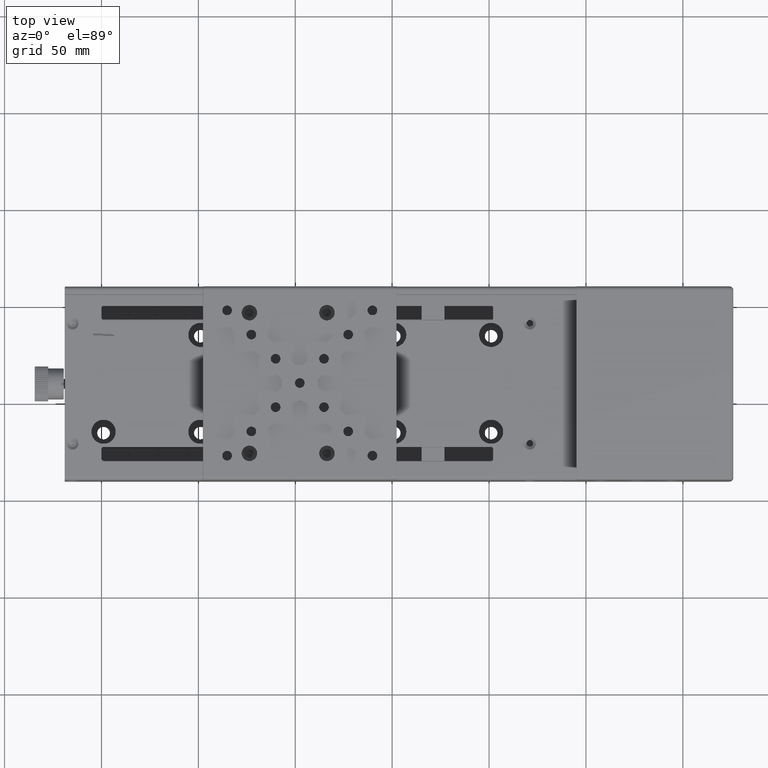
[diagram: clean part render]
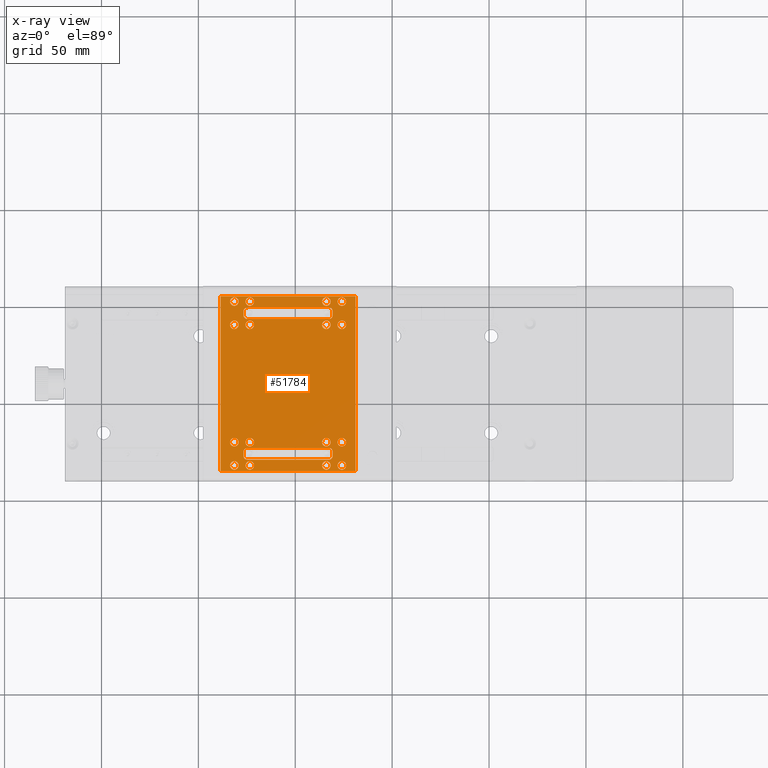
[diagram: x-ray — body ghosted, one internal face saturated and labeled with its STEP entity id]
A machine part, top view, then the same camera in x-ray: the body is ghosted and one INTERNAL B-rep face — a face not visible from any outside direction — is saturated and labeled: STEP entity #51784.
In plain terms, the highlighted planar face has unit normal (0, 0, 1).
Its self-contained STEP definition (entity closure, byte-faithful):
#247 = VERTEX_POINT ( 'NONE', #21428 ) ;
#332 = ORIENTED_EDGE ( 'NONE', *, *, #71512, .T. ) ;
#506 = ORIENTED_EDGE ( 'NONE', *, *, #46120, .T. ) ;
#659 = DIRECTION ( 'NONE',  ( -1.000000000000000000, 0.000000000000000000, 0.000000000000000000 ) ) ;
#706 = EDGE_CURVE ( 'NONE', #35404, #1262, #40378, .T. ) ;
#854 = CARTESIAN_POINT ( 'NONE',  ( -31.75341547894224803, -32.30575141257539684, 32.50000000000000000 ) ) ;
#1262 = VERTEX_POINT ( 'NONE', #56250 ) ;
#1293 = CARTESIAN_POINT ( 'NONE',  ( -76.70341547894220469, -23.30575141257540039, 32.50000000000000000 ) ) ;
#1304 = DIRECTION ( 'NONE',  ( -1.000000000000000000, 0.000000000000000000, 0.000000000000000000 ) ) ;
#1483 = ORIENTED_EDGE ( 'NONE', *, *, #13015, .T. ) ;
#1798 = VERTEX_POINT ( 'NONE', #41067 ) ;
#1828 = CARTESIAN_POINT ( 'NONE',  ( -32.70341547894224732, 49.29424858742459747, 32.50000000000000000 ) ) ;
#1870 = EDGE_CURVE ( 'NONE', #59480, #67586, #32856, .T. ) ;
#1907 = AXIS2_PLACEMENT_3D ( 'NONE', #30076, #69883, #2076 ) ;
#2076 = DIRECTION ( 'NONE',  ( -1.000000000000000000, 0.000000000000000000, 0.000000000000000000 ) ) ;
#2593 = AXIS2_PLACEMENT_3D ( 'NONE', #23923, #65883, #31599 ) ;
#2636 = DIRECTION ( 'NONE',  ( -1.000000000000000000, 0.000000000000000000, 0.000000000000000000 ) ) ;
#2653 = CARTESIAN_POINT ( 'NONE',  ( -33.95341547894224732, -20.30575141257540039, 32.50000000000000000 ) ) ;
#2947 = DIRECTION ( 'NONE',  ( -1.000000000000000000, 0.000000000000000000, 0.000000000000000000 ) ) ;
#2949 = DIRECTION ( 'NONE',  ( -1.000000000000000000, 0.000000000000000000, 0.000000000000000000 ) ) ;
#2978 = ORIENTED_EDGE ( 'NONE', *, *, #64624, .F. ) ;
#3164 = VERTEX_POINT ( 'NONE', #37204 ) ;
#3206 = FACE_BOUND ( 'NONE', #8957, .T. ) ;
#3412 = DIRECTION ( 'NONE',  ( 0.000000000000000000, 4.903491597976379727E-16, 1.000000000000000000 ) ) ;
#3427 = EDGE_CURVE ( 'NONE', #37369, #1798, #9065, .T. ) ;
#3522 = VERTEX_POINT ( 'NONE', #61952 ) ;
#3747 = ORIENTED_EDGE ( 'NONE', *, *, #48272, .F. ) ;
#3863 = CARTESIAN_POINT ( 'NONE',  ( -73.45341547894228995, 40.29424858742459747, 32.50000000000000000 ) ) ;
#3877 = CARTESIAN_POINT ( 'NONE',  ( -30.70341547894224732, 45.29424858742460458, 32.50000000000000000 ) ) ;
#3913 = FACE_BOUND ( 'NONE', #61116, .T. ) ;
#3980 = DIRECTION ( 'NONE',  ( -5.551115123125779621E-17, 1.000000000000000000, -4.903491597976379727E-16 ) ) ;
#4258 = CIRCLE ( 'NONE', #12544, 2.000000000000001776 ) ;
#4293 = AXIS2_PLACEMENT_3D ( 'NONE', #67022, #26201, #659 ) ;
#4591 = CARTESIAN_POINT ( 'NONE',  ( -81.45341547894230416, 52.29424858742460458, 32.50000000000000000 ) ) ;
#4592 = DIRECTION ( 'NONE',  ( 0.000000000000000000, -4.903491597976379727E-16, -1.000000000000000000 ) ) ;
#4803 = VERTEX_POINT ( 'NONE', #40592 ) ;
#4830 = EDGE_CURVE ( 'NONE', #60572, #66361, #33578, .T. ) ;
#4939 = CIRCLE ( 'NONE', #72053, 2.200000000000000622 ) ;
#5091 = CARTESIAN_POINT ( 'NONE',  ( -88.50341547894228711, -35.30575141257540395, 32.50000000000000000 ) ) ;
#5339 = AXIS2_PLACEMENT_3D ( 'NONE', #70809, #49048, #2636 ) ;
#5947 = CARTESIAN_POINT ( 'NONE',  ( -81.45341547894230416, 40.29424858742459747, 32.50000000000000000 ) ) ;
#6075 = DIRECTION ( 'NONE',  ( 0.000000000000000000, 4.903491597976379727E-16, 1.000000000000000000 ) ) ;
#6340 = CARTESIAN_POINT ( 'NONE',  ( -81.45341547894230416, -32.30575141257539684, 32.50000000000000000 ) ) ;
#6504 = DIRECTION ( 'NONE',  ( 5.551115123125779621E-17, -1.000000000000000000, 4.903491597976379727E-16 ) ) ;
#6800 = CARTESIAN_POINT ( 'NONE',  ( -74.70341547894230416, 49.29424858742459747, 32.50000000000000000 ) ) ;
#7166 = ORIENTED_EDGE ( 'NONE', *, *, #42067, .F. ) ;
#7223 = EDGE_LOOP ( 'NONE', ( #49945, #60224 ) ) ;
#7239 = CARTESIAN_POINT ( 'NONE',  ( -75.65341547894229279, 52.29424858742460458, 32.50000000000000000 ) ) ;
#7772 = AXIS2_PLACEMENT_3D ( 'NONE', #45533, #23767, #40010 ) ;
#7927 = VERTEX_POINT ( 'NONE', #8224 ) ;
#8067 = DIRECTION ( 'NONE',  ( 0.000000000000000000, 4.903491597976379727E-16, 1.000000000000000000 ) ) ;
#8115 = ORIENTED_EDGE ( 'NONE', *, *, #48105, .F. ) ;
#8224 = CARTESIAN_POINT ( 'NONE',  ( -76.70341547894220469, -27.30575141257540039, 32.50000000000000000 ) ) ;
#8714 = CARTESIAN_POINT ( 'NONE',  ( -53.70341547894229706, 9.994248587424591435, 32.50000000000000000 ) ) ;
#8930 = CARTESIAN_POINT ( 'NONE',  ( -33.95341547894224732, 40.29424858742459747, 32.50000000000000000 ) ) ;
#8957 = EDGE_LOOP ( 'NONE', ( #72456, #8115 ) ) ;
#9065 = CIRCLE ( 'NONE', #50271, 2.200000000000000622 ) ;
#9192 = EDGE_LOOP ( 'NONE', ( #68864, #32514, #66306, #43540, #2978, #69899, #1483, #50257 ) ) ;
#9437 = EDGE_LOOP ( 'NONE', ( #25250, #25184 ) ) ;
#9548 = DIRECTION ( 'NONE',  ( 0.000000000000000000, 4.903491597976379727E-16, 1.000000000000000000 ) ) ;
#9973 = VERTEX_POINT ( 'NONE', #30569 ) ;
#10006 = CARTESIAN_POINT ( 'NONE',  ( -76.70341547894230416, 45.29424858742460458, 32.50000000000000000 ) ) ;
#10015 = CARTESIAN_POINT ( 'NONE',  ( -88.70341547894228995, 55.09424858742460174, 32.50000000000000000 ) ) ;
#10093 = DIRECTION ( 'NONE',  ( -1.000000000000000000, 0.000000000000000000, 0.000000000000000000 ) ) ;
#10298 = ORIENTED_EDGE ( 'NONE', *, *, #37364, .F. ) ;
#10639 = ORIENTED_EDGE ( 'NONE', *, *, #57852, .F. ) ;
#10747 = EDGE_CURVE ( 'NONE', #4803, #16373, #67083, .T. ) ;
#11046 = VERTEX_POINT ( 'NONE', #70162 ) ;
#11538 = CARTESIAN_POINT ( 'NONE',  ( -73.45341547894228995, -32.30575141257539684, 32.50000000000000000 ) ) ;
#11585 = CARTESIAN_POINT ( 'NONE',  ( -25.95341547894224732, -32.30575141257544658, 32.50000000000000000 ) ) ;
#11788 = CIRCLE ( 'NONE', #69467, 2.199999999999993516 ) ;
#12275 = DIRECTION ( 'NONE',  ( 1.000000000000000000, -1.665334536937734811E-16, -5.548120488592929190E-17 ) ) ;
#12297 = VERTEX_POINT ( 'NONE', #48858 ) ;
#12415 = CARTESIAN_POINT ( 'NONE',  ( -18.90341547894225016, 55.29424858742459747, 32.50000000000000000 ) ) ;
#12472 = CARTESIAN_POINT ( 'NONE',  ( -18.70341547894224732, -23.30575141257545368, 32.50000000000000000 ) ) ;
#12544 = AXIS2_PLACEMENT_3D ( 'NONE', #46862, #25089, #47211 ) ;
#12763 = VERTEX_POINT ( 'NONE', #32827 ) ;
#12912 = EDGE_LOOP ( 'NONE', ( #17031, #22436 ) ) ;
#13015 = EDGE_CURVE ( 'NONE', #52026, #3522, #15056, .T. ) ;
#13165 = EDGE_CURVE ( 'NONE', #24958, #21509, #47287, .T. ) ;
#13331 = VECTOR ( 'NONE', #30810, 1000.000000000000000 ) ;
#13436 = DIRECTION ( 'NONE',  ( 0.000000000000000000, 4.903491597976379727E-16, 1.000000000000000000 ) ) ;
#13585 = EDGE_CURVE ( 'NONE', #247, #39088, #33602, .T. ) ;
#13732 = DIRECTION ( 'NONE',  ( 0.000000000000000000, 4.903491597976379727E-16, 1.000000000000000000 ) ) ;
#13789 = DIRECTION ( 'NONE',  ( -1.000000000000000000, 0.000000000000000000, 0.000000000000000000 ) ) ;
#14031 = VERTEX_POINT ( 'NONE', #16346 ) ;
#14260 = FACE_BOUND ( 'NONE', #50340, .T. ) ;
#14274 = EDGE_CURVE ( 'NONE', #59778, #30059, #59572, .T. ) ;
#14374 = DIRECTION ( 'NONE',  ( 0.000000000000000000, 4.903491597976379727E-16, 1.000000000000000000 ) ) ;
#14913 = VERTEX_POINT ( 'NONE', #54840 ) ;
#14990 = CIRCLE ( 'NONE', #45638, 2.200000000000000622 ) ;
#15004 = VECTOR ( 'NONE', #49466, 1000.000000000000000 ) ;
#15056 = LINE ( 'NONE', #15418, #22599 ) ;
#15265 = ORIENTED_EDGE ( 'NONE', *, *, #66947, .T. ) ;
#15351 = FACE_BOUND ( 'NONE', #33166, .T. ) ;
#15418 = CARTESIAN_POINT ( 'NONE',  ( -76.70341547894230416, 49.29424858742459747, 32.50000000000000000 ) ) ;
#15496 = AXIS2_PLACEMENT_3D ( 'NONE', #45630, #39374, #17243 ) ;
#15805 = EDGE_CURVE ( 'NONE', #1262, #35404, #37384, .T. ) ;
#15868 = ORIENTED_EDGE ( 'NONE', *, *, #22490, .T. ) ;
#15887 = AXIS2_PLACEMENT_3D ( 'NONE', #47189, #63427, #52340 ) ;
#16346 = CARTESIAN_POINT ( 'NONE',  ( -30.70341547894224732, -25.30575141257545013, 32.50000000000000000 ) ) ;
#16373 = VERTEX_POINT ( 'NONE', #41304 ) ;
#16526 = ORIENTED_EDGE ( 'NONE', *, *, #65838, .F. ) ;
#16641 = CARTESIAN_POINT ( 'NONE',  ( -30.70341547894224732, -29.30575141257545013, 32.50000000000000000 ) ) ;
#16794 = CARTESIAN_POINT ( 'NONE',  ( -33.95341547894224732, -32.30575141257539684, 32.50000000000000000 ) ) ;
#17011 = ORIENTED_EDGE ( 'NONE', *, *, #19293, .F. ) ;
#17020 = EDGE_CURVE ( 'NONE', #39418, #65947, #40383, .T. ) ;
#17031 = ORIENTED_EDGE ( 'NONE', *, *, #17246, .F. ) ;
#17173 = EDGE_LOOP ( 'NONE', ( #39330, #52611, #15265, #63244 ) ) ;
#17243 = DIRECTION ( 'NONE',  ( -1.000000000000000000, 0.000000000000000000, 0.000000000000000000 ) ) ;
#17246 = EDGE_CURVE ( 'NONE', #33391, #57960, #26192, .T. ) ;
#17393 = VERTEX_POINT ( 'NONE', #21062 ) ;
#17594 = CARTESIAN_POINT ( 'NONE',  ( -30.70341547894224732, 49.29424858742459747, 32.50000000000000000 ) ) ;
#18227 = LINE ( 'NONE', #1293, #39578 ) ;
#18277 = ORIENTED_EDGE ( 'NONE', *, *, #35164, .F. ) ;
#18627 = ORIENTED_EDGE ( 'NONE', *, *, #70540, .F. ) ;
#18681 = CARTESIAN_POINT ( 'NONE',  ( -83.65341547894229279, 40.29424858742459747, 32.50000000000000000 ) ) ;
#18747 = CIRCLE ( 'NONE', #56395, 2.199999999999993516 ) ;
#18782 = CARTESIAN_POINT ( 'NONE',  ( -71.25341547894230132, 40.29424858742459747, 32.50000000000000000 ) ) ;
#18828 = VERTEX_POINT ( 'NONE', #70327 ) ;
#18893 = CARTESIAN_POINT ( 'NONE',  ( -18.70341547894224732, -35.10575141257545084, 32.50000000000000000 ) ) ;
#19283 = CARTESIAN_POINT ( 'NONE',  ( -36.15341547894225016, -20.30575141257540039, 32.50000000000000000 ) ) ;
#19293 = EDGE_CURVE ( 'NONE', #34232, #54882, #26936, .T. ) ;
#19406 = CARTESIAN_POINT ( 'NONE',  ( -74.70341547894220469, -27.30575141257540039, 32.50000000000000000 ) ) ;
#19441 = AXIS2_PLACEMENT_3D ( 'NONE', #16794, #6075, #62135 ) ;
#19784 = FACE_BOUND ( 'NONE', #9192, .T. ) ;
#19956 = AXIS2_PLACEMENT_3D ( 'NONE', #4591, #43677, #44781 ) ;
#20130 = FACE_BOUND ( 'NONE', #7223, .T. ) ;
#20415 = CIRCLE ( 'NONE', #29867, 2.199999999999993516 ) ;
#20448 = DIRECTION ( 'NONE',  ( 0.000000000000000000, 4.903491597976379727E-16, 1.000000000000000000 ) ) ;
#20687 = EDGE_LOOP ( 'NONE', ( #32247, #52501 ) ) ;
#20779 = CARTESIAN_POINT ( 'NONE',  ( -25.95341547894224732, 52.29424858742460458, 32.50000000000000000 ) ) ;
#20860 = FACE_BOUND ( 'NONE', #71089, .T. ) ;
#21062 = CARTESIAN_POINT ( 'NONE',  ( -83.65341547894229279, -20.30575141257540039, 32.50000000000000000 ) ) ;
#21347 = CARTESIAN_POINT ( 'NONE',  ( -73.45341547894228995, 52.29424858742460458, 32.50000000000000000 ) ) ;
#21379 = CARTESIAN_POINT ( 'NONE',  ( -36.15341547894225016, 40.29424858742459747, 32.50000000000000000 ) ) ;
#21428 = CARTESIAN_POINT ( 'NONE',  ( -36.15341547894225016, -32.30575141257539684, 32.50000000000000000 ) ) ;
#21509 = VERTEX_POINT ( 'NONE', #32460 ) ;
#21514 = CARTESIAN_POINT ( 'NONE',  ( -81.45341547894230416, -20.30575141257540039, 32.50000000000000000 ) ) ;
#21539 = VECTOR ( 'NONE', #57566, 1000.000000000000000 ) ;
#21601 = CARTESIAN_POINT ( 'NONE',  ( -73.45341547894228995, 40.29424858742459747, 32.50000000000000000 ) ) ;
#21953 = CARTESIAN_POINT ( 'NONE',  ( -25.95341547894224732, 40.29424858742459747, 32.50000000000000000 ) ) ;
#22029 = LINE ( 'NONE', #17594, #64062 ) ;
#22436 = ORIENTED_EDGE ( 'NONE', *, *, #41689, .F. ) ;
#22490 = EDGE_CURVE ( 'NONE', #53563, #9973, #29915, .T. ) ;
#22599 = VECTOR ( 'NONE', #3980, 1000.000000000000000 ) ;
#22951 = DIRECTION ( 'NONE',  ( -1.000000000000000000, 0.000000000000000000, 0.000000000000000000 ) ) ;
#22982 = VERTEX_POINT ( 'NONE', #29270 ) ;
#23149 = VECTOR ( 'NONE', #31182, 1000.000000000000000 ) ;
#23377 = AXIS2_PLACEMENT_3D ( 'NONE', #3863, #20448, #54001 ) ;
#23767 = DIRECTION ( 'NONE',  ( 0.000000000000000000, 4.903491597976379727E-16, 1.000000000000000000 ) ) ;
#23923 = CARTESIAN_POINT ( 'NONE',  ( -81.45341547894230416, -32.30575141257539684, 32.50000000000000000 ) ) ;
#24131 = VECTOR ( 'NONE', #57423, 1000.000000000000000 ) ;
#24148 = EDGE_CURVE ( 'NONE', #67586, #59480, #72110, .T. ) ;
#24215 = LINE ( 'NONE', #12415, #13331 ) ;
#24588 = DIRECTION ( 'NONE',  ( 0.000000000000000000, -4.903491597976379727E-16, -1.000000000000000000 ) ) ;
#24932 = DIRECTION ( 'NONE',  ( 0.000000000000000000, -4.903491597976379727E-16, -1.000000000000000000 ) ) ;
#24958 = VERTEX_POINT ( 'NONE', #1828 ) ;
#25089 = DIRECTION ( 'NONE',  ( 0.000000000000000000, -4.903491597976379727E-16, -1.000000000000000000 ) ) ;
#25139 = DIRECTION ( 'NONE',  ( -1.000000000000000000, 0.000000000000000000, 0.000000000000000000 ) ) ;
#25184 = ORIENTED_EDGE ( 'NONE', *, *, #10747, .F. ) ;
#25192 = CARTESIAN_POINT ( 'NONE',  ( -75.65341547894229279, 40.29424858742459747, 32.50000000000000000 ) ) ;
#25222 = CARTESIAN_POINT ( 'NONE',  ( -33.95341547894224732, -20.30575141257540039, 32.50000000000000000 ) ) ;
#25250 = ORIENTED_EDGE ( 'NONE', *, *, #34471, .F. ) ;
#25447 = EDGE_LOOP ( 'NONE', ( #3747, #18277 ) ) ;
#25519 = DIRECTION ( 'NONE',  ( -1.000000000000000000, 0.000000000000000000, 0.000000000000000000 ) ) ;
#25687 = DIRECTION ( 'NONE',  ( 5.548120488592939051E-17, 4.903491597976379727E-16, 1.000000000000000000 ) ) ;
#25818 = CARTESIAN_POINT ( 'NONE',  ( -76.70341547894220469, -25.30575141257540039, 32.50000000000000000 ) ) ;
#25829 = EDGE_CURVE ( 'NONE', #56152, #60737, #69007, .T. ) ;
#26117 = EDGE_CURVE ( 'NONE', #66131, #17393, #20415, .T. ) ;
#26192 = CIRCLE ( 'NONE', #35622, 2.199999999999993516 ) ;
#26201 = DIRECTION ( 'NONE',  ( 0.000000000000000000, 4.903491597976379727E-16, 1.000000000000000000 ) ) ;
#26936 = CIRCLE ( 'NONE', #23377, 2.199999999999993516 ) ;
#27040 = CIRCLE ( 'NONE', #29426, 2.200000000000000622 ) ;
#27204 = VECTOR ( 'NONE', #67768, 1000.000000000000000 ) ;
#27227 = VERTEX_POINT ( 'NONE', #41491 ) ;
#28085 = EDGE_CURVE ( 'NONE', #65947, #39418, #60416, .T. ) ;
#28657 = AXIS2_PLACEMENT_3D ( 'NONE', #70048, #57877, #2949 ) ;
#28686 = ORIENTED_EDGE ( 'NONE', *, *, #25829, .F. ) ;
#28687 = ORIENTED_EDGE ( 'NONE', *, *, #26117, .F. ) ;
#29050 = CIRCLE ( 'NONE', #4293, 2.200000000000000622 ) ;
#29158 = VERTEX_POINT ( 'NONE', #68247 ) ;
#29167 = CARTESIAN_POINT ( 'NONE',  ( -32.70341547894224732, 43.29424858742460458, 32.50000000000000000 ) ) ;
#29270 = CARTESIAN_POINT ( 'NONE',  ( -79.25341547894230132, 40.29424858742459747, 32.50000000000000000 ) ) ;
#29426 = AXIS2_PLACEMENT_3D ( 'NONE', #42524, #70181, #13789 ) ;
#29587 = ORIENTED_EDGE ( 'NONE', *, *, #50955, .F. ) ;
#29867 = AXIS2_PLACEMENT_3D ( 'NONE', #21514, #48797, #66127 ) ;
#29915 = CIRCLE ( 'NONE', #65270, 2.000000000000001776 ) ;
#30059 = VERTEX_POINT ( 'NONE', #19283 ) ;
#30076 = CARTESIAN_POINT ( 'NONE',  ( -32.70341547894224732, -25.30575141257545013, 32.50000000000000000 ) ) ;
#30256 = CARTESIAN_POINT ( 'NONE',  ( -79.25341547894230132, -32.30575141257539684, 32.50000000000000000 ) ) ;
#30312 = CIRCLE ( 'NONE', #47933, 2.199999999999993516 ) ;
#30390 = DIRECTION ( 'NONE',  ( -1.000000000000000000, 0.000000000000000000, 0.000000000000000000 ) ) ;
#30441 = VERTEX_POINT ( 'NONE', #30256 ) ;
#30569 = CARTESIAN_POINT ( 'NONE',  ( -74.70341547894220469, -23.30575141257540039, 32.50000000000000000 ) ) ;
#30663 = EDGE_CURVE ( 'NONE', #14913, #14031, #40749, .T. ) ;
#30716 = CARTESIAN_POINT ( 'NONE',  ( -33.95341547894224732, 40.29424858742459747, 32.50000000000000000 ) ) ;
#30808 = CARTESIAN_POINT ( 'NONE',  ( -71.25341547894230132, -32.30575141257539684, 32.50000000000000000 ) ) ;
#30810 = DIRECTION ( 'NONE',  ( 9.766531463865889530E-17, 1.000000000000000000, -4.903491597976379727E-16 ) ) ;
#31182 = DIRECTION ( 'NONE',  ( -1.000000000000000000, 6.740639792367020092E-17, 5.548120488592929190E-17 ) ) ;
#31326 = AXIS2_PLACEMENT_3D ( 'NONE', #11538, #40301, #39571 ) ;
#31599 = DIRECTION ( 'NONE',  ( -1.000000000000000000, 0.000000000000000000, 0.000000000000000000 ) ) ;
#31703 = CARTESIAN_POINT ( 'NONE',  ( -28.15341547894224661, -32.30575141257544658, 32.50000000000000000 ) ) ;
#31847 = ORIENTED_EDGE ( 'NONE', *, *, #30663, .T. ) ;
#32213 = ORIENTED_EDGE ( 'NONE', *, *, #13585, .F. ) ;
#32247 = ORIENTED_EDGE ( 'NONE', *, *, #17020, .F. ) ;
#32438 = CARTESIAN_POINT ( 'NONE',  ( -31.75341547894224803, -20.30575141257540039, 32.50000000000000000 ) ) ;
#32460 = CARTESIAN_POINT ( 'NONE',  ( -30.70341547894224732, 47.29424858742459747, 32.50000000000000000 ) ) ;
#32469 = CARTESIAN_POINT ( 'NONE',  ( -33.95341547894224732, -32.30575141257539684, 32.50000000000000000 ) ) ;
#32476 = AXIS2_PLACEMENT_3D ( 'NONE', #60958, #32961, #10093 ) ;
#32514 = ORIENTED_EDGE ( 'NONE', *, *, #13165, .T. ) ;
#32529 = AXIS2_PLACEMENT_3D ( 'NONE', #8714, #25687, #66220 ) ;
#32773 = CARTESIAN_POINT ( 'NONE',  ( -73.45341547894228995, -32.30575141257539684, 32.50000000000000000 ) ) ;
#32827 = CARTESIAN_POINT ( 'NONE',  ( -88.50341547894228711, -35.10575141257545084, 32.50000000000000000 ) ) ;
#32856 = CIRCLE ( 'NONE', #63503, 2.200000000000000622 ) ;
#32961 = DIRECTION ( 'NONE',  ( 0.000000000000000000, 4.903491597976379727E-16, 1.000000000000000000 ) ) ;
#33025 = ORIENTED_EDGE ( 'NONE', *, *, #65284, .F. ) ;
#33166 = EDGE_LOOP ( 'NONE', ( #35174, #60566 ) ) ;
#33226 = LINE ( 'NONE', #16641, #36563 ) ;
#33302 = VERTEX_POINT ( 'NONE', #57009 ) ;
#33391 = VERTEX_POINT ( 'NONE', #7239 ) ;
#33578 = CIRCLE ( 'NONE', #15887, 2.000000000000001776 ) ;
#33602 = CIRCLE ( 'NONE', #19441, 2.200000000000000622 ) ;
#33960 = EDGE_CURVE ( 'NONE', #50691, #42333, #62347, .T. ) ;
#34165 = ORIENTED_EDGE ( 'NONE', *, *, #47807, .F. ) ;
#34232 = VERTEX_POINT ( 'NONE', #25192 ) ;
#34471 = EDGE_CURVE ( 'NONE', #16373, #4803, #43556, .T. ) ;
#34960 = LINE ( 'NONE', #12472, #24131 ) ;
#35164 = EDGE_CURVE ( 'NONE', #11046, #18828, #53750, .T. ) ;
#35174 = ORIENTED_EDGE ( 'NONE', *, *, #1870, .F. ) ;
#35215 = CIRCLE ( 'NONE', #55170, 2.000000000000001776 ) ;
#35404 = VERTEX_POINT ( 'NONE', #30808 ) ;
#35622 = AXIS2_PLACEMENT_3D ( 'NONE', #46933, #13732, #25519 ) ;
#35732 = EDGE_CURVE ( 'NONE', #12297, #27227, #46740, .T. ) ;
#36563 = VECTOR ( 'NONE', #39126, 1000.000000000000000 ) ;
#36587 = DIRECTION ( 'NONE',  ( -1.000000000000000000, 0.000000000000000000, 0.000000000000000000 ) ) ;
#36604 = EDGE_CURVE ( 'NONE', #24958, #36778, #70641, .T. ) ;
#36778 = VERTEX_POINT ( 'NONE', #6800 ) ;
#37204 = CARTESIAN_POINT ( 'NONE',  ( -28.15341547894224661, -20.30575141257540039, 32.50000000000000000 ) ) ;
#37357 = EDGE_CURVE ( 'NONE', #7927, #53563, #18227, .T. ) ;
#37364 = EDGE_CURVE ( 'NONE', #49594, #3164, #43087, .T. ) ;
#37369 = VERTEX_POINT ( 'NONE', #46259 ) ;
#37384 = CIRCLE ( 'NONE', #31326, 2.199999999999993516 ) ;
#37385 = DIRECTION ( 'NONE',  ( -1.000000000000000000, 0.000000000000000000, 0.000000000000000000 ) ) ;
#37465 = FACE_BOUND ( 'NONE', #50411, .T. ) ;
#37816 = FACE_BOUND ( 'NONE', #68220, .T. ) ;
#37917 = VERTEX_POINT ( 'NONE', #62027 ) ;
#38443 = CARTESIAN_POINT ( 'NONE',  ( -30.70341547894224732, -27.30575141257545368, 32.50000000000000000 ) ) ;
#38904 = DIRECTION ( 'NONE',  ( 0.000000000000000000, 4.903491597976379727E-16, 1.000000000000000000 ) ) ;
#38977 = DIRECTION ( 'NONE',  ( -1.000000000000000000, 0.000000000000000000, 0.000000000000000000 ) ) ;
#39088 = VERTEX_POINT ( 'NONE', #854 ) ;
#39126 = DIRECTION ( 'NONE',  ( 5.551115123125779621E-17, -1.000000000000000000, 4.903491597976379727E-16 ) ) ;
#39330 = ORIENTED_EDGE ( 'NONE', *, *, #53075, .T. ) ;
#39334 = CARTESIAN_POINT ( 'NONE',  ( -74.70341547894220469, -25.30575141257540039, 32.50000000000000000 ) ) ;
#39374 = DIRECTION ( 'NONE',  ( 0.000000000000000000, -4.903491597976379727E-16, -1.000000000000000000 ) ) ;
#39418 = VERTEX_POINT ( 'NONE', #49781 ) ;
#39571 = DIRECTION ( 'NONE',  ( -1.000000000000000000, 0.000000000000000000, 0.000000000000000000 ) ) ;
#39578 = VECTOR ( 'NONE', #40733, 1000.000000000000000 ) ;
#39624 = DIRECTION ( 'NONE',  ( 0.000000000000000000, 4.903491597976379727E-16, 1.000000000000000000 ) ) ;
#40010 = DIRECTION ( 'NONE',  ( -1.000000000000000000, 0.000000000000000000, 0.000000000000000000 ) ) ;
#40056 = AXIS2_PLACEMENT_3D ( 'NONE', #62371, #40997, #57907 ) ;
#40234 = CIRCLE ( 'NONE', #57830, 2.199999999999993516 ) ;
#40301 = DIRECTION ( 'NONE',  ( 0.000000000000000000, 4.903491597976379727E-16, 1.000000000000000000 ) ) ;
#40362 = AXIS2_PLACEMENT_3D ( 'NONE', #30716, #57269, #51744 ) ;
#40378 = CIRCLE ( 'NONE', #45100, 2.199999999999993516 ) ;
#40383 = CIRCLE ( 'NONE', #56800, 2.200000000000000622 ) ;
#40592 = CARTESIAN_POINT ( 'NONE',  ( -79.25341547894230132, 52.29424858742460458, 32.50000000000000000 ) ) ;
#40733 = DIRECTION ( 'NONE',  ( -5.551115123125779621E-17, 1.000000000000000000, -4.903491597976379727E-16 ) ) ;
#40749 = CIRCLE ( 'NONE', #1907, 2.000000000000001776 ) ;
#40769 = CIRCLE ( 'NONE', #32476, 2.199999999999993516 ) ;
#40836 = CARTESIAN_POINT ( 'NONE',  ( -74.70341547894230416, 45.29424858742460458, 32.50000000000000000 ) ) ;
#40997 = DIRECTION ( 'NONE',  ( 0.000000000000000000, 4.903491597976379727E-16, 1.000000000000000000 ) ) ;
#41067 = CARTESIAN_POINT ( 'NONE',  ( -31.75341547894229421, 52.29424858742460458, 32.50000000000000000 ) ) ;
#41167 = EDGE_CURVE ( 'NONE', #29158, #12763, #56674, .T. ) ;
#41304 = CARTESIAN_POINT ( 'NONE',  ( -83.65341547894229279, 52.29424858742460458, 32.50000000000000000 ) ) ;
#41491 = CARTESIAN_POINT ( 'NONE',  ( -71.25341547894230132, -20.30575141257540039, 32.50000000000000000 ) ) ;
#41689 = EDGE_CURVE ( 'NONE', #57960, #33391, #40234, .T. ) ;
#41916 = VECTOR ( 'NONE', #12275, 1000.000000000000000 ) ;
#42067 = EDGE_CURVE ( 'NONE', #30441, #33302, #44960, .T. ) ;
#42333 = VERTEX_POINT ( 'NONE', #31703 ) ;
#42350 = DIRECTION ( 'NONE',  ( -1.000000000000000000, 0.000000000000000000, 0.000000000000000000 ) ) ;
#42524 = CARTESIAN_POINT ( 'NONE',  ( -25.95341547894224732, -20.30575141257540039, 32.50000000000000000 ) ) ;
#43001 = FACE_BOUND ( 'NONE', #20687, .T. ) ;
#43087 = CIRCLE ( 'NONE', #7772, 2.200000000000000622 ) ;
#43226 = LINE ( 'NONE', #10015, #15004 ) ;
#43540 = ORIENTED_EDGE ( 'NONE', *, *, #4830, .T. ) ;
#43556 = CIRCLE ( 'NONE', #40056, 2.199999999999993516 ) ;
#43677 = DIRECTION ( 'NONE',  ( 0.000000000000000000, 4.903491597976379727E-16, 1.000000000000000000 ) ) ;
#43723 = FACE_BOUND ( 'NONE', #51397, .T. ) ;
#43772 = DIRECTION ( 'NONE',  ( 0.000000000000000000, 4.903491597976379727E-16, 1.000000000000000000 ) ) ;
#44002 = AXIS2_PLACEMENT_3D ( 'NONE', #5947, #67895, #67540 ) ;
#44139 = CARTESIAN_POINT ( 'NONE',  ( -25.95341547894224732, 40.29424858742459747, 32.50000000000000000 ) ) ;
#44219 = EDGE_CURVE ( 'NONE', #21509, #60572, #22029, .T. ) ;
#44376 = EDGE_CURVE ( 'NONE', #54586, #37917, #24215, .T. ) ;
#44731 = AXIS2_PLACEMENT_3D ( 'NONE', #11585, #39624, #72051 ) ;
#44781 = DIRECTION ( 'NONE',  ( -1.000000000000000000, 0.000000000000000000, 0.000000000000000000 ) ) ;
#44892 = EDGE_CURVE ( 'NONE', #68735, #22982, #58088, .T. ) ;
#44960 = CIRCLE ( 'NONE', #2593, 2.199999999999993516 ) ;
#45100 = AXIS2_PLACEMENT_3D ( 'NONE', #32773, #14374, #2947 ) ;
#45533 = CARTESIAN_POINT ( 'NONE',  ( -25.95341547894224732, -20.30575141257540039, 32.50000000000000000 ) ) ;
#45630 = CARTESIAN_POINT ( 'NONE',  ( -32.70341547894224732, 47.29424858742459747, 32.50000000000000000 ) ) ;
#45638 = AXIS2_PLACEMENT_3D ( 'NONE', #21953, #38904, #1304 ) ;
#45840 = ORIENTED_EDGE ( 'NONE', *, *, #56266, .T. ) ;
#45930 = LINE ( 'NONE', #67683, #48788 ) ;
#46120 = EDGE_CURVE ( 'NONE', #62139, #60737, #68887, .T. ) ;
#46259 = CARTESIAN_POINT ( 'NONE',  ( -36.15341547894229990, 52.29424858742460458, 32.50000000000000000 ) ) ;
#46740 = CIRCLE ( 'NONE', #5339, 2.199999999999993516 ) ;
#46808 = CARTESIAN_POINT ( 'NONE',  ( -81.45341547894230416, -20.30575141257540039, 32.50000000000000000 ) ) ;
#46862 = CARTESIAN_POINT ( 'NONE',  ( -74.70341547894230416, 47.29424858742459747, 32.50000000000000000 ) ) ;
#46933 = CARTESIAN_POINT ( 'NONE',  ( -73.45341547894228995, 52.29424858742460458, 32.50000000000000000 ) ) ;
#46989 = CARTESIAN_POINT ( 'NONE',  ( -25.95341547894224732, -32.30575141257544658, 32.50000000000000000 ) ) ;
#47189 = CARTESIAN_POINT ( 'NONE',  ( -32.70341547894224732, 45.29424858742460458, 32.50000000000000000 ) ) ;
#47211 = DIRECTION ( 'NONE',  ( -1.000000000000000000, 0.000000000000000000, 0.000000000000000000 ) ) ;
#47287 = CIRCLE ( 'NONE', #15496, 2.000000000000001776 ) ;
#47675 = AXIS2_PLACEMENT_3D ( 'NONE', #61735, #4592, #49204 ) ;
#47789 = DIRECTION ( 'NONE',  ( -1.000000000000000000, 0.000000000000000000, 0.000000000000000000 ) ) ;
#47807 = EDGE_CURVE ( 'NONE', #1798, #37369, #29050, .T. ) ;
#47809 = FACE_BOUND ( 'NONE', #59943, .T. ) ;
#47878 = AXIS2_PLACEMENT_3D ( 'NONE', #44139, #43772, #38977 ) ;
#47933 = AXIS2_PLACEMENT_3D ( 'NONE', #53669, #71357, #47789 ) ;
#48105 = EDGE_CURVE ( 'NONE', #22982, #68735, #30312, .T. ) ;
#48272 = EDGE_CURVE ( 'NONE', #18828, #11046, #14990, .T. ) ;
#48341 = CARTESIAN_POINT ( 'NONE',  ( -33.95341547894229706, 52.29424858742460458, 32.50000000000000000 ) ) ;
#48788 = VECTOR ( 'NONE', #51797, 1000.000000000000000 ) ;
#48797 = DIRECTION ( 'NONE',  ( 0.000000000000000000, 4.903491597976379727E-16, 1.000000000000000000 ) ) ;
#48858 = CARTESIAN_POINT ( 'NONE',  ( -75.65341547894229279, -20.30575141257540039, 32.50000000000000000 ) ) ;
#48885 = FACE_BOUND ( 'NONE', #70206, .T. ) ;
#49048 = DIRECTION ( 'NONE',  ( 0.000000000000000000, 4.903491597976379727E-16, 1.000000000000000000 ) ) ;
#49204 = DIRECTION ( 'NONE',  ( -1.000000000000000000, 0.000000000000000000, 0.000000000000000000 ) ) ;
#49246 = FACE_OUTER_BOUND ( 'NONE', #17173, .T. ) ;
#49415 = DIRECTION ( 'NONE',  ( 0.000000000000000000, 4.903491597976379727E-16, 1.000000000000000000 ) ) ;
#49423 = ORIENTED_EDGE ( 'NONE', *, *, #14274, .F. ) ;
#49466 = DIRECTION ( 'NONE',  ( -1.000000000000000000, 1.665334536937734811E-16, 5.548120488592929190E-17 ) ) ;
#49594 = VERTEX_POINT ( 'NONE', #52950 ) ;
#49781 = CARTESIAN_POINT ( 'NONE',  ( -28.15341547894224661, 52.29424858742460458, 32.50000000000000000 ) ) ;
#49945 = ORIENTED_EDGE ( 'NONE', *, *, #15805, .F. ) ;
#50257 = ORIENTED_EDGE ( 'NONE', *, *, #66441, .T. ) ;
#50271 = AXIS2_PLACEMENT_3D ( 'NONE', #48341, #67124, #67495 ) ;
#50302 = ORIENTED_EDGE ( 'NONE', *, *, #56540, .F. ) ;
#50340 = EDGE_LOOP ( 'NONE', ( #50302, #7166 ) ) ;
#50411 = EDGE_LOOP ( 'NONE', ( #53014, #16526 ) ) ;
#50691 = VERTEX_POINT ( 'NONE', #59202 ) ;
#50714 = VERTEX_POINT ( 'NONE', #58838 ) ;
#50955 = EDGE_CURVE ( 'NONE', #54882, #34232, #69477, .T. ) ;
#51397 = EDGE_LOOP ( 'NONE', ( #64871, #10298 ) ) ;
#51460 = DIRECTION ( 'NONE',  ( 0.000000000000000000, -4.903491597976379727E-16, -1.000000000000000000 ) ) ;
#51744 = DIRECTION ( 'NONE',  ( -1.000000000000000000, 0.000000000000000000, 0.000000000000000000 ) ) ;
#51773 = AXIS2_PLACEMENT_3D ( 'NONE', #46989, #13436, #58379 ) ;
#51784 = ADVANCED_FACE ( 'NONE', ( #43001, #48885, #71376, #71737, #3206, #47809, #15351, #64758, #71021, #37465, #37816, #43723, #19784, #14260, #20130, #65487, #3913, #20860, #49246 ), #60296, .T. ) ;
#51797 = DIRECTION ( 'NONE',  ( 1.000000000000000000, -1.665334536937734811E-16, -5.548120488592929190E-17 ) ) ;
#52026 = VERTEX_POINT ( 'NONE', #10006 ) ;
#52340 = DIRECTION ( 'NONE',  ( -1.000000000000000000, 0.000000000000000000, 0.000000000000000000 ) ) ;
#52501 = ORIENTED_EDGE ( 'NONE', *, *, #28085, .F. ) ;
#52588 = CARTESIAN_POINT ( 'NONE',  ( -18.70341547894224732, 49.29424858742459747, 32.50000000000000000 ) ) ;
#52611 = ORIENTED_EDGE ( 'NONE', *, *, #41167, .T. ) ;
#52950 = CARTESIAN_POINT ( 'NONE',  ( -23.75341547894224803, -20.30575141257540039, 32.50000000000000000 ) ) ;
#53014 = ORIENTED_EDGE ( 'NONE', *, *, #35732, .F. ) ;
#53075 = EDGE_CURVE ( 'NONE', #37917, #29158, #43226, .T. ) ;
#53134 = CIRCLE ( 'NONE', #64927, 2.200000000000000622 ) ;
#53563 = VERTEX_POINT ( 'NONE', #25818 ) ;
#53669 = CARTESIAN_POINT ( 'NONE',  ( -81.45341547894230416, 40.29424858742459747, 32.50000000000000000 ) ) ;
#53750 = CIRCLE ( 'NONE', #47878, 2.200000000000000622 ) ;
#54001 = DIRECTION ( 'NONE',  ( -1.000000000000000000, 0.000000000000000000, 0.000000000000000000 ) ) ;
#54586 = VERTEX_POINT ( 'NONE', #72623 ) ;
#54840 = CARTESIAN_POINT ( 'NONE',  ( -32.70341547894224732, -23.30575141257545368, 32.50000000000000000 ) ) ;
#54882 = VERTEX_POINT ( 'NONE', #18782 ) ;
#55170 = AXIS2_PLACEMENT_3D ( 'NONE', #40836, #24588, #68106 ) ;
#55208 = DIRECTION ( 'NONE',  ( 0.000000000000000000, 4.903491597976379727E-16, 1.000000000000000000 ) ) ;
#55242 = DIRECTION ( 'NONE',  ( -1.000000000000000000, 0.000000000000000000, 0.000000000000000000 ) ) ;
#55478 = DIRECTION ( 'NONE',  ( 0.000000000000000000, 4.903491597976379727E-16, 1.000000000000000000 ) ) ;
#55823 = EDGE_CURVE ( 'NONE', #17393, #66131, #18747, .T. ) ;
#56152 = VERTEX_POINT ( 'NONE', #67730 ) ;
#56250 = CARTESIAN_POINT ( 'NONE',  ( -75.65341547894229279, -32.30575141257539684, 32.50000000000000000 ) ) ;
#56266 = EDGE_CURVE ( 'NONE', #56152, #7927, #72949, .T. ) ;
#56395 = AXIS2_PLACEMENT_3D ( 'NONE', #46808, #8067, #42350 ) ;
#56513 = AXIS2_PLACEMENT_3D ( 'NONE', #21601, #55478, #72457 ) ;
#56540 = EDGE_CURVE ( 'NONE', #33302, #30441, #11788, .T. ) ;
#56674 = LINE ( 'NONE', #5091, #27204 ) ;
#56682 = ORIENTED_EDGE ( 'NONE', *, *, #37357, .T. ) ;
#56800 = AXIS2_PLACEMENT_3D ( 'NONE', #20779, #60947, #37385 ) ;
#57009 = CARTESIAN_POINT ( 'NONE',  ( -83.65341547894229279, -32.30575141257539684, 32.50000000000000000 ) ) ;
#57247 = CARTESIAN_POINT ( 'NONE',  ( -23.75341547894229777, 52.29424858742460458, 32.50000000000000000 ) ) ;
#57269 = DIRECTION ( 'NONE',  ( 0.000000000000000000, 4.903491597976379727E-16, 1.000000000000000000 ) ) ;
#57279 = CARTESIAN_POINT ( 'NONE',  ( -32.70341547894224732, -29.30575141257545013, 32.50000000000000000 ) ) ;
#57423 = DIRECTION ( 'NONE',  ( -1.000000000000000000, 1.665334536937734811E-16, 5.548120488592929190E-17 ) ) ;
#57566 = DIRECTION ( 'NONE',  ( 1.000000000000000000, -1.665334536937734811E-16, -5.548120488592929190E-17 ) ) ;
#57830 = AXIS2_PLACEMENT_3D ( 'NONE', #21347, #9548, #55242 ) ;
#57852 = EDGE_CURVE ( 'NONE', #30059, #59778, #53134, .T. ) ;
#57877 = DIRECTION ( 'NONE',  ( 0.000000000000000000, 4.903491597976379727E-16, 1.000000000000000000 ) ) ;
#57907 = DIRECTION ( 'NONE',  ( -1.000000000000000000, 0.000000000000000000, 0.000000000000000000 ) ) ;
#57960 = VERTEX_POINT ( 'NONE', #64653 ) ;
#58088 = CIRCLE ( 'NONE', #44002, 2.199999999999993516 ) ;
#58379 = DIRECTION ( 'NONE',  ( -1.000000000000000000, 0.000000000000000000, 0.000000000000000000 ) ) ;
#58813 = AXIS2_PLACEMENT_3D ( 'NONE', #19406, #24932, #64032 ) ;
#58838 = CARTESIAN_POINT ( 'NONE',  ( -74.70341547894230416, 43.29424858742460458, 32.50000000000000000 ) ) ;
#59202 = CARTESIAN_POINT ( 'NONE',  ( -23.75341547894224803, -32.30575141257544658, 32.50000000000000000 ) ) ;
#59480 = VERTEX_POINT ( 'NONE', #21379 ) ;
#59572 = CIRCLE ( 'NONE', #66656, 2.200000000000000622 ) ;
#59778 = VERTEX_POINT ( 'NONE', #32438 ) ;
#59943 = EDGE_LOOP ( 'NONE', ( #17011, #29587 ) ) ;
#60224 = ORIENTED_EDGE ( 'NONE', *, *, #706, .F. ) ;
#60296 = PLANE ( 'NONE',  #32529 ) ;
#60416 = CIRCLE ( 'NONE', #28657, 2.200000000000000622 ) ;
#60521 = EDGE_LOOP ( 'NONE', ( #63093, #28687 ) ) ;
#60566 = ORIENTED_EDGE ( 'NONE', *, *, #24148, .F. ) ;
#60572 = VERTEX_POINT ( 'NONE', #3877 ) ;
#60737 = VERTEX_POINT ( 'NONE', #57279 ) ;
#60947 = DIRECTION ( 'NONE',  ( 0.000000000000000000, 4.903491597976379727E-16, 1.000000000000000000 ) ) ;
#60958 = CARTESIAN_POINT ( 'NONE',  ( -73.45341547894228995, -20.30575141257540039, 32.50000000000000000 ) ) ;
#61116 = EDGE_LOOP ( 'NONE', ( #18627, #71977 ) ) ;
#61423 = DIRECTION ( 'NONE',  ( -1.000000000000000000, 0.000000000000000000, 0.000000000000000000 ) ) ;
#61735 = CARTESIAN_POINT ( 'NONE',  ( -32.70341547894224732, -27.30575141257545368, 32.50000000000000000 ) ) ;
#61952 = CARTESIAN_POINT ( 'NONE',  ( -76.70341547894230416, 47.29424858742459747, 32.50000000000000000 ) ) ;
#62027 = CARTESIAN_POINT ( 'NONE',  ( -18.90341547894225016, 55.09424858742460174, 32.50000000000000000 ) ) ;
#62135 = DIRECTION ( 'NONE',  ( -1.000000000000000000, 0.000000000000000000, 0.000000000000000000 ) ) ;
#62139 = VERTEX_POINT ( 'NONE', #38443 ) ;
#62347 = CIRCLE ( 'NONE', #44731, 2.200000000000000622 ) ;
#62371 = CARTESIAN_POINT ( 'NONE',  ( -81.45341547894230416, 52.29424858742460458, 32.50000000000000000 ) ) ;
#62658 = EDGE_CURVE ( 'NONE', #39088, #247, #4939, .T. ) ;
#63093 = ORIENTED_EDGE ( 'NONE', *, *, #55823, .F. ) ;
#63244 = ORIENTED_EDGE ( 'NONE', *, *, #44376, .T. ) ;
#63427 = DIRECTION ( 'NONE',  ( 0.000000000000000000, -4.903491597976379727E-16, -1.000000000000000000 ) ) ;
#63503 = AXIS2_PLACEMENT_3D ( 'NONE', #8930, #3412, #36587 ) ;
#63509 = LINE ( 'NONE', #18893, #41916 ) ;
#64032 = DIRECTION ( 'NONE',  ( -1.000000000000000000, 0.000000000000000000, 0.000000000000000000 ) ) ;
#64062 = VECTOR ( 'NONE', #6504, 1000.000000000000000 ) ;
#64624 = EDGE_CURVE ( 'NONE', #50714, #66361, #45930, .T. ) ;
#64653 = CARTESIAN_POINT ( 'NONE',  ( -71.25341547894230132, 52.29424858742460458, 32.50000000000000000 ) ) ;
#64758 = FACE_BOUND ( 'NONE', #25447, .T. ) ;
#64871 = ORIENTED_EDGE ( 'NONE', *, *, #70512, .F. ) ;
#64927 = AXIS2_PLACEMENT_3D ( 'NONE', #25222, #69470, #30390 ) ;
#65270 = AXIS2_PLACEMENT_3D ( 'NONE', #39334, #51460, #61423 ) ;
#65284 = EDGE_CURVE ( 'NONE', #14913, #9973, #34960, .T. ) ;
#65487 = FACE_BOUND ( 'NONE', #70958, .T. ) ;
#65838 = EDGE_CURVE ( 'NONE', #27227, #12297, #40769, .T. ) ;
#65883 = DIRECTION ( 'NONE',  ( 0.000000000000000000, 4.903491597976379727E-16, 1.000000000000000000 ) ) ;
#65947 = VERTEX_POINT ( 'NONE', #57247 ) ;
#66127 = DIRECTION ( 'NONE',  ( -1.000000000000000000, 0.000000000000000000, 0.000000000000000000 ) ) ;
#66131 = VERTEX_POINT ( 'NONE', #70139 ) ;
#66220 = DIRECTION ( 'NONE',  ( 0.000000000000000000, -1.000000000000000000, 4.903491597976379727E-16 ) ) ;
#66306 = ORIENTED_EDGE ( 'NONE', *, *, #44219, .T. ) ;
#66361 = VERTEX_POINT ( 'NONE', #29167 ) ;
#66441 = EDGE_CURVE ( 'NONE', #3522, #36778, #4258, .T. ) ;
#66656 = AXIS2_PLACEMENT_3D ( 'NONE', #2653, #55208, #25139 ) ;
#66947 = EDGE_CURVE ( 'NONE', #12763, #54586, #63509, .T. ) ;
#67022 = CARTESIAN_POINT ( 'NONE',  ( -33.95341547894229706, 52.29424858742460458, 32.50000000000000000 ) ) ;
#67083 = CIRCLE ( 'NONE', #19956, 2.199999999999993516 ) ;
#67124 = DIRECTION ( 'NONE',  ( 0.000000000000000000, 4.903491597976379727E-16, 1.000000000000000000 ) ) ;
#67301 = ORIENTED_EDGE ( 'NONE', *, *, #3427, .F. ) ;
#67495 = DIRECTION ( 'NONE',  ( -1.000000000000000000, 0.000000000000000000, 0.000000000000000000 ) ) ;
#67540 = DIRECTION ( 'NONE',  ( -1.000000000000000000, 0.000000000000000000, 0.000000000000000000 ) ) ;
#67586 = VERTEX_POINT ( 'NONE', #71235 ) ;
#67683 = CARTESIAN_POINT ( 'NONE',  ( -18.70341547894224732, 43.29424858742460458, 32.50000000000000000 ) ) ;
#67730 = CARTESIAN_POINT ( 'NONE',  ( -74.70341547894220469, -29.30575141257540039, 32.50000000000000000 ) ) ;
#67768 = DIRECTION ( 'NONE',  ( -9.766531463865889530E-17, -1.000000000000000000, 4.903491597976379727E-16 ) ) ;
#67895 = DIRECTION ( 'NONE',  ( 0.000000000000000000, 4.903491597976379727E-16, 1.000000000000000000 ) ) ;
#68106 = DIRECTION ( 'NONE',  ( -1.000000000000000000, 0.000000000000000000, 0.000000000000000000 ) ) ;
#68220 = EDGE_LOOP ( 'NONE', ( #10639, #49423 ) ) ;
#68247 = CARTESIAN_POINT ( 'NONE',  ( -88.50341547894228711, 55.09424858742460174, 32.50000000000000000 ) ) ;
#68264 = CIRCLE ( 'NONE', #51773, 2.200000000000000622 ) ;
#68650 = CARTESIAN_POINT ( 'NONE',  ( -18.70341547894224732, -29.30575141257545013, 32.50000000000000000 ) ) ;
#68654 = DIRECTION ( 'NONE',  ( 0.000000000000000000, 4.903491597976379727E-16, 1.000000000000000000 ) ) ;
#68735 = VERTEX_POINT ( 'NONE', #18681 ) ;
#68864 = ORIENTED_EDGE ( 'NONE', *, *, #36604, .F. ) ;
#68887 = CIRCLE ( 'NONE', #47675, 2.000000000000001776 ) ;
#69007 = LINE ( 'NONE', #68650, #21539 ) ;
#69467 = AXIS2_PLACEMENT_3D ( 'NONE', #6340, #68654, #22951 ) ;
#69470 = DIRECTION ( 'NONE',  ( 0.000000000000000000, 4.903491597976379727E-16, 1.000000000000000000 ) ) ;
#69477 = CIRCLE ( 'NONE', #56513, 2.199999999999993516 ) ;
#69883 = DIRECTION ( 'NONE',  ( 0.000000000000000000, -4.903491597976379727E-16, -1.000000000000000000 ) ) ;
#69899 = ORIENTED_EDGE ( 'NONE', *, *, #69926, .T. ) ;
#69926 = EDGE_CURVE ( 'NONE', #50714, #52026, #35215, .T. ) ;
#70048 = CARTESIAN_POINT ( 'NONE',  ( -25.95341547894224732, 52.29424858742460458, 32.50000000000000000 ) ) ;
#70139 = CARTESIAN_POINT ( 'NONE',  ( -79.25341547894230132, -20.30575141257540039, 32.50000000000000000 ) ) ;
#70162 = CARTESIAN_POINT ( 'NONE',  ( -23.75341547894224803, 40.29424858742459747, 32.50000000000000000 ) ) ;
#70181 = DIRECTION ( 'NONE',  ( 0.000000000000000000, 4.903491597976379727E-16, 1.000000000000000000 ) ) ;
#70206 = EDGE_LOOP ( 'NONE', ( #67301, #34165 ) ) ;
#70327 = CARTESIAN_POINT ( 'NONE',  ( -28.15341547894224661, 40.29424858742459747, 32.50000000000000000 ) ) ;
#70512 = EDGE_CURVE ( 'NONE', #3164, #49594, #27040, .T. ) ;
#70540 = EDGE_CURVE ( 'NONE', #42333, #50691, #68264, .T. ) ;
#70641 = LINE ( 'NONE', #52588, #23149 ) ;
#70809 = CARTESIAN_POINT ( 'NONE',  ( -73.45341547894228995, -20.30575141257540039, 32.50000000000000000 ) ) ;
#70958 = EDGE_LOOP ( 'NONE', ( #32213, #71310 ) ) ;
#71021 = FACE_BOUND ( 'NONE', #60521, .T. ) ;
#71089 = EDGE_LOOP ( 'NONE', ( #28686, #45840, #56682, #15868, #33025, #31847, #332, #506 ) ) ;
#71235 = CARTESIAN_POINT ( 'NONE',  ( -31.75341547894224803, 40.29424858742459747, 32.50000000000000000 ) ) ;
#71310 = ORIENTED_EDGE ( 'NONE', *, *, #62658, .F. ) ;
#71357 = DIRECTION ( 'NONE',  ( 0.000000000000000000, 4.903491597976379727E-16, 1.000000000000000000 ) ) ;
#71376 = FACE_BOUND ( 'NONE', #12912, .T. ) ;
#71512 = EDGE_CURVE ( 'NONE', #14031, #62139, #33226, .T. ) ;
#71549 = DIRECTION ( 'NONE',  ( -1.000000000000000000, 0.000000000000000000, 0.000000000000000000 ) ) ;
#71737 = FACE_BOUND ( 'NONE', #9437, .T. ) ;
#71977 = ORIENTED_EDGE ( 'NONE', *, *, #33960, .F. ) ;
#72051 = DIRECTION ( 'NONE',  ( -1.000000000000000000, 0.000000000000000000, 0.000000000000000000 ) ) ;
#72053 = AXIS2_PLACEMENT_3D ( 'NONE', #32469, #49415, #71549 ) ;
#72110 = CIRCLE ( 'NONE', #40362, 2.200000000000000622 ) ;
#72456 = ORIENTED_EDGE ( 'NONE', *, *, #44892, .F. ) ;
#72457 = DIRECTION ( 'NONE',  ( -1.000000000000000000, 0.000000000000000000, 0.000000000000000000 ) ) ;
#72623 = CARTESIAN_POINT ( 'NONE',  ( -18.90341547894225016, -35.10575141257545084, 32.50000000000000000 ) ) ;
#72949 = CIRCLE ( 'NONE', #58813, 2.000000000000001776 ) ;